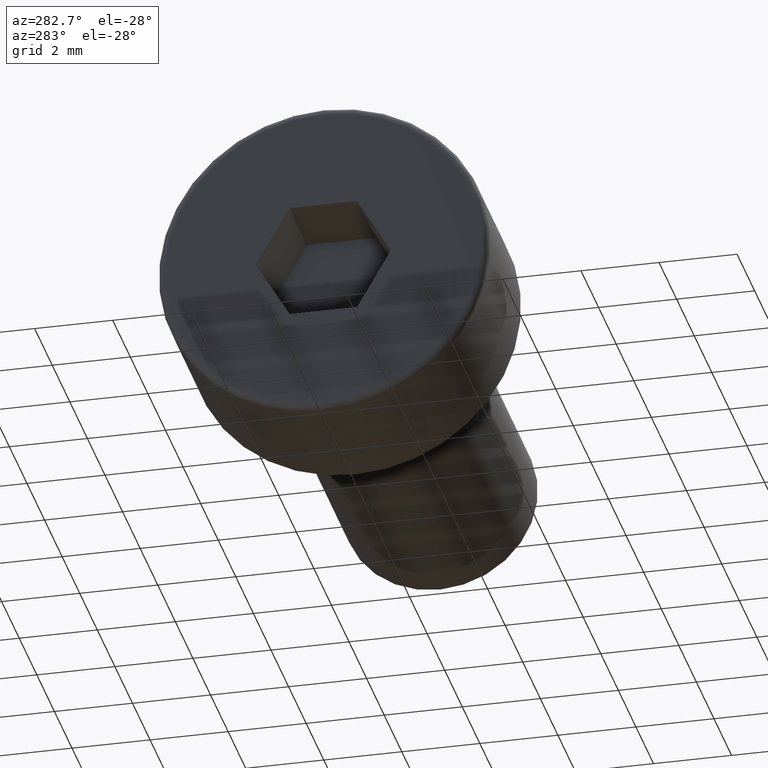
[diagram: clean part render]
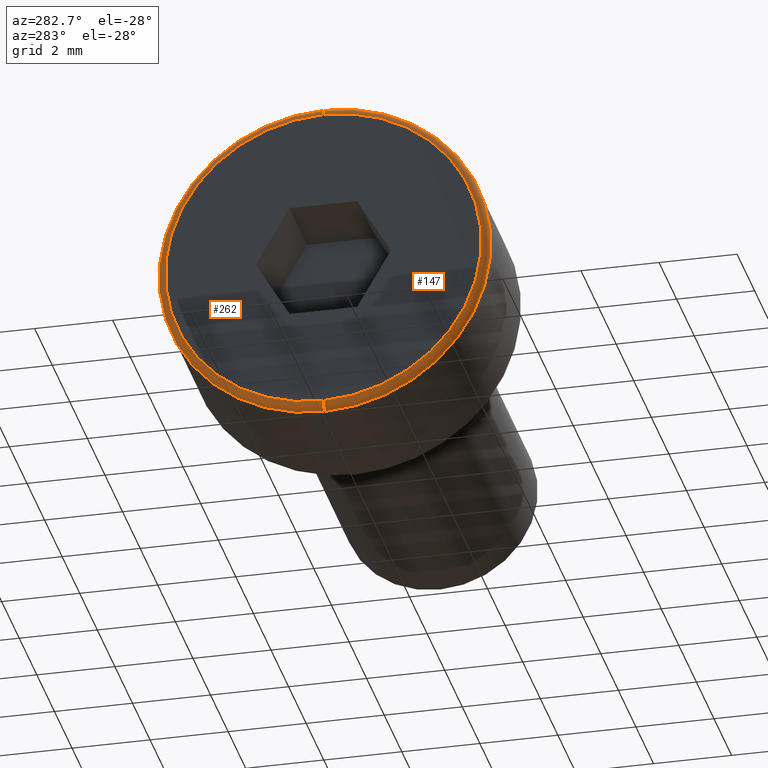
[diagram: same view with one multi-face feature highlighted, each face labeled with its STEP entity id]
A machine part, auxiliary view. The highlighted faces form ONE feature: a constant-radius fillet chain: 2 tangent blend faces with common blend radius 0.2 mm. The faces share edges in the B-rep.
Their STEP definitions:
[1] entity #262 (Torus):
#6 = EDGE_CURVE ( 'NONE', #684, #583, #279, .T. ) ;
#23 = DIRECTION ( 'NONE',  ( 0.0000000000000000000, 1.000000000000000000, -1.224646799147353200E-016 ) ) ;
#29 = VERTEX_POINT ( 'NONE', #76 ) ;
#34 = DIRECTION ( 'NONE',  ( 0.0000000000000000000, 0.0000000000000000000, -1.000000000000000000 ) ) ;
#48 = ORIENTED_EDGE ( 'NONE', *, *, #6, .F. ) ;
#74 = DIRECTION ( 'NONE',  ( 0.0000000000000000000, -1.000000000000000000, 0.0000000000000000000 ) ) ;
#76 = CARTESIAN_POINT ( 'NONE',  ( -3.799999999999999800, 5.082284216461517100E-016, 4.050000000000001600 ) ) ;
#99 = AXIS2_PLACEMENT_3D ( 'NONE', #777, #23, #420 ) ;
#103 = DIRECTION ( 'NONE',  ( 0.0000000000000000000, 0.0000000000000000000, -1.000000000000000000 ) ) ;
#118 = CIRCLE ( 'NONE', #321, 4.050000000000001600 ) ;
#125 = AXIS2_PLACEMENT_3D ( 'NONE', #428, #74, #103 ) ;
#167 = DIRECTION ( 'NONE',  ( -1.000000000000000000, -0.0000000000000000000, -0.0000000000000000000 ) ) ;
#199 = DIRECTION ( 'NONE',  ( 0.0000000000000000000, 0.0000000000000000000, -1.000000000000000000 ) ) ;
#232 = DIRECTION ( 'NONE',  ( 1.000000000000000000, 0.0000000000000000000, 0.0000000000000000000 ) ) ;
#262 = ADVANCED_FACE ( 'NONE', ( #427 ), #549, .T. ) ;
#279 = CIRCLE ( 'NONE', #314, 4.250000000000000900 ) ;
#282 = CIRCLE ( 'NONE', #125, 0.1999999999999996500 ) ;
#299 = CARTESIAN_POINT ( 'NONE',  ( -3.600000000000000100, 0.0000000000000000000, 0.0000000000000000000 ) ) ;
#314 = AXIS2_PLACEMENT_3D ( 'NONE', #440, #487, #807 ) ;
#321 = AXIS2_PLACEMENT_3D ( 'NONE', #617, #167, #34 ) ;
#356 = CIRCLE ( 'NONE', #99, 0.1999999999999996500 ) ;
#362 = CARTESIAN_POINT ( 'NONE',  ( -3.600000000000000100, 5.204748896376250700E-016, 4.250000000000000900 ) ) ;
#376 = EDGE_LOOP ( 'NONE', ( #809, #814, #48, #543 ) ) ;
#394 = EDGE_CURVE ( 'NONE', #29, #583, #356, .T. ) ;
#398 = VERTEX_POINT ( 'NONE', #470 ) ;
#420 = DIRECTION ( 'NONE',  ( 0.0000000000000000000, 1.224646799147353500E-016, 1.000000000000000000 ) ) ;
#427 = FACE_OUTER_BOUND ( 'NONE', #376, .T. ) ;
#428 = CARTESIAN_POINT ( 'NONE',  ( -3.600000000000000100, 0.0000000000000000000, -4.050000000000001600 ) ) ;
#434 = CARTESIAN_POINT ( 'NONE',  ( -3.600000000000000100, 0.0000000000000000000, -4.250000000000000900 ) ) ;
#440 = CARTESIAN_POINT ( 'NONE',  ( -3.600000000000000100, 0.0000000000000000000, 0.0000000000000000000 ) ) ;
#470 = CARTESIAN_POINT ( 'NONE',  ( -3.799999999999999800, 0.0000000000000000000, -4.050000000000001600 ) ) ;
#487 = DIRECTION ( 'NONE',  ( 1.000000000000000000, 0.0000000000000000000, 0.0000000000000000000 ) ) ;
#543 = ORIENTED_EDGE ( 'NONE', *, *, #702, .F. ) ;
#549 = TOROIDAL_SURFACE ( 'NONE', #662, 4.050000000000001600, 0.2000000000000000100 ) ;
#583 = VERTEX_POINT ( 'NONE', #362 ) ;
#617 = CARTESIAN_POINT ( 'NONE',  ( -3.799999999999999800, 0.0000000000000000000, 0.0000000000000000000 ) ) ;
#662 = AXIS2_PLACEMENT_3D ( 'NONE', #299, #232, #199 ) ;
#684 = VERTEX_POINT ( 'NONE', #434 ) ;
#702 = EDGE_CURVE ( 'NONE', #398, #684, #282, .T. ) ;
#777 = CARTESIAN_POINT ( 'NONE',  ( -3.600000000000000100, 4.959819536546782600E-016, 4.050000000000001600 ) ) ;
#807 = DIRECTION ( 'NONE',  ( 0.0000000000000000000, 0.0000000000000000000, -1.000000000000000000 ) ) ;
#809 = ORIENTED_EDGE ( 'NONE', *, *, #813, .F. ) ;
#813 = EDGE_CURVE ( 'NONE', #29, #398, #118, .T. ) ;
#814 = ORIENTED_EDGE ( 'NONE', *, *, #394, .T. ) ;
[2] entity #147 (Torus):
#23 = DIRECTION ( 'NONE',  ( 0.0000000000000000000, 1.000000000000000000, -1.224646799147353200E-016 ) ) ;
#29 = VERTEX_POINT ( 'NONE', #76 ) ;
#62 = ORIENTED_EDGE ( 'NONE', *, *, #702, .T. ) ;
#68 = EDGE_CURVE ( 'NONE', #398, #29, #239, .T. ) ;
#74 = DIRECTION ( 'NONE',  ( 0.0000000000000000000, -1.000000000000000000, 0.0000000000000000000 ) ) ;
#76 = CARTESIAN_POINT ( 'NONE',  ( -3.799999999999999800, 5.082284216461517100E-016, 4.050000000000001600 ) ) ;
#99 = AXIS2_PLACEMENT_3D ( 'NONE', #777, #23, #420 ) ;
#103 = DIRECTION ( 'NONE',  ( 0.0000000000000000000, 0.0000000000000000000, -1.000000000000000000 ) ) ;
#125 = AXIS2_PLACEMENT_3D ( 'NONE', #428, #74, #103 ) ;
#128 = CIRCLE ( 'NONE', #246, 4.250000000000000900 ) ;
#147 = ADVANCED_FACE ( 'NONE', ( #380 ), #817, .T. ) ;
#159 = DIRECTION ( 'NONE',  ( 0.0000000000000000000, 0.0000000000000000000, -1.000000000000000000 ) ) ;
#164 = ORIENTED_EDGE ( 'NONE', *, *, #188, .F. ) ;
#188 = EDGE_CURVE ( 'NONE', #583, #684, #128, .T. ) ;
#230 = CARTESIAN_POINT ( 'NONE',  ( -3.799999999999999800, 0.0000000000000000000, 0.0000000000000000000 ) ) ;
#235 = DIRECTION ( 'NONE',  ( -1.000000000000000000, -0.0000000000000000000, -0.0000000000000000000 ) ) ;
#239 = CIRCLE ( 'NONE', #521, 4.050000000000001600 ) ;
#246 = AXIS2_PLACEMENT_3D ( 'NONE', #798, #500, #159 ) ;
#282 = CIRCLE ( 'NONE', #125, 0.1999999999999996500 ) ;
#288 = DIRECTION ( 'NONE',  ( 0.0000000000000000000, 0.0000000000000000000, -1.000000000000000000 ) ) ;
#356 = CIRCLE ( 'NONE', #99, 0.1999999999999996500 ) ;
#362 = CARTESIAN_POINT ( 'NONE',  ( -3.600000000000000100, 5.204748896376250700E-016, 4.250000000000000900 ) ) ;
#380 = FACE_OUTER_BOUND ( 'NONE', #412, .T. ) ;
#394 = EDGE_CURVE ( 'NONE', #29, #583, #356, .T. ) ;
#398 = VERTEX_POINT ( 'NONE', #470 ) ;
#412 = EDGE_LOOP ( 'NONE', ( #508, #758, #62, #164 ) ) ;
#420 = DIRECTION ( 'NONE',  ( 0.0000000000000000000, 1.224646799147353500E-016, 1.000000000000000000 ) ) ;
#428 = CARTESIAN_POINT ( 'NONE',  ( -3.600000000000000100, 0.0000000000000000000, -4.050000000000001600 ) ) ;
#434 = CARTESIAN_POINT ( 'NONE',  ( -3.600000000000000100, 0.0000000000000000000, -4.250000000000000900 ) ) ;
#470 = CARTESIAN_POINT ( 'NONE',  ( -3.799999999999999800, 0.0000000000000000000, -4.050000000000001600 ) ) ;
#500 = DIRECTION ( 'NONE',  ( 1.000000000000000000, 0.0000000000000000000, 0.0000000000000000000 ) ) ;
#508 = ORIENTED_EDGE ( 'NONE', *, *, #394, .F. ) ;
#521 = AXIS2_PLACEMENT_3D ( 'NONE', #230, #235, #288 ) ;
#557 = DIRECTION ( 'NONE',  ( 1.000000000000000000, 0.0000000000000000000, 0.0000000000000000000 ) ) ;
#583 = VERTEX_POINT ( 'NONE', #362 ) ;
#593 = CARTESIAN_POINT ( 'NONE',  ( -3.600000000000000100, 0.0000000000000000000, 0.0000000000000000000 ) ) ;
#684 = VERTEX_POINT ( 'NONE', #434 ) ;
#702 = EDGE_CURVE ( 'NONE', #398, #684, #282, .T. ) ;
#706 = DIRECTION ( 'NONE',  ( 0.0000000000000000000, 0.0000000000000000000, -1.000000000000000000 ) ) ;
#758 = ORIENTED_EDGE ( 'NONE', *, *, #68, .F. ) ;
#761 = AXIS2_PLACEMENT_3D ( 'NONE', #593, #557, #706 ) ;
#777 = CARTESIAN_POINT ( 'NONE',  ( -3.600000000000000100, 4.959819536546782600E-016, 4.050000000000001600 ) ) ;
#798 = CARTESIAN_POINT ( 'NONE',  ( -3.600000000000000100, 0.0000000000000000000, 0.0000000000000000000 ) ) ;
#817 = TOROIDAL_SURFACE ( 'NONE', #761, 4.050000000000001600, 0.2000000000000000100 ) ;